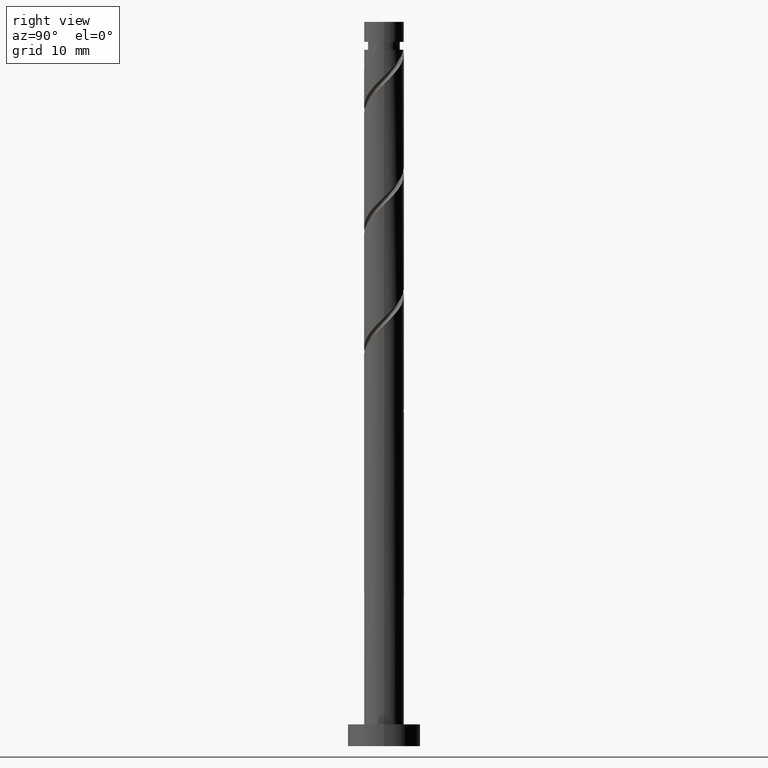
[diagram: clean part render]
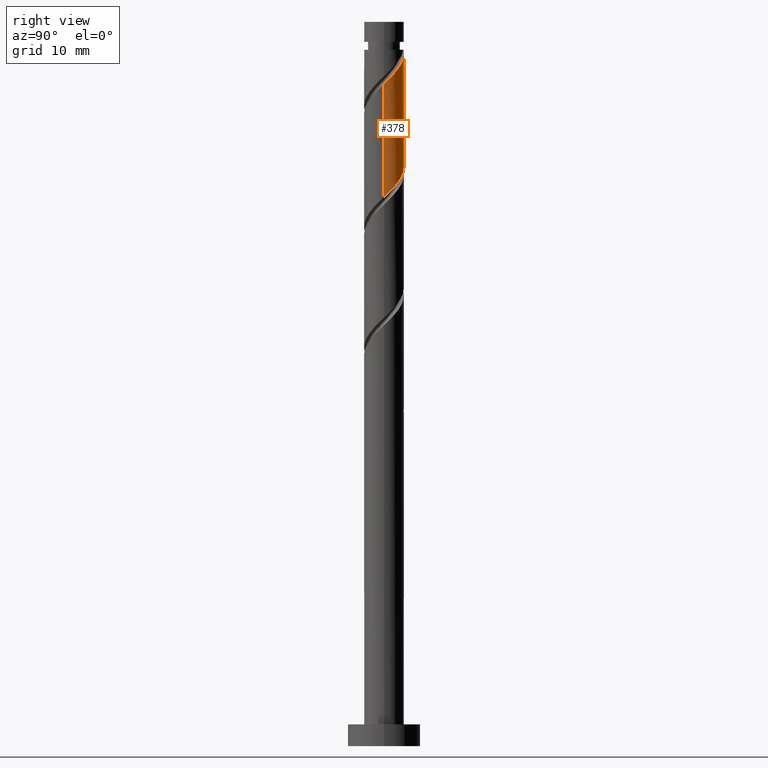
[diagram: same view with one face highlighted and labeled with its STEP entity id]
A machine part, right view. The second image highlights one B-rep face of the part: STEP entity #378.
In plain terms, the highlighted cylindrical surface (edge-blend (fillet) strip) has radius 2.75 mm, axis along (-0, -0, -1).
Its self-contained STEP definition (entity closure, byte-faithful):
#28 = CARTESIAN_POINT ( 'NONE',  ( -0.5472430904086412751, 2.695000000000002949, 96.14339405132615468 ) ) ;
#35 = FACE_OUTER_BOUND ( 'NONE', #1368, .T. ) ;
#66 = CARTESIAN_POINT ( 'NONE',  ( 2.151525136548020800, 1.712728696204399492, 77.62487553280762143 ) ) ;
#69 = CARTESIAN_POINT ( 'NONE',  ( -2.750000000000000000, 0.000000000000000000, 100.0000000000000000 ) ) ;
#73 = CARTESIAN_POINT ( 'NONE',  ( 1.022444303417954448, 2.598506278154673943, 79.01376442169650716 ) ) ;
#142 =( BOUNDED_CURVE ( )  B_SPLINE_CURVE ( 2, ( #1166, #828, #598, #1051, #388, #941, #1402, #843, #151, #1186, #406, #164, #28 ),
 .UNSPECIFIED., .F., .T. ) 
 B_SPLINE_CURVE_WITH_KNOTS ( ( 3, 2, 2, 2, 2, 2, 3 ),
 ( 0.6795248053855290626, 0.6805555555555555802, 0.6944444444444444198, 0.7083333333333332593, 0.7222222222222220989, 0.7361111111111110494, 0.7499999999999998890 ),
 .UNSPECIFIED. ) 
 CURVE ( )  GEOMETRIC_REPRESENTATION_ITEM ( )  RATIONAL_B_SPLINE_CURVE ( ( 0.9071930855141258077, 0.9080659294509735302, 0.9090909090909136125, 0.8952797754656481866, 0.9090909090909136125, 0.8952797754656481866, 0.9090909090909136125, 0.8952797754656481866, 0.9090909090909136125, 0.8952797754656481866, 0.9090909090909136125, 0.8952797754656482976, 0.9090909090909135015 ) ) 
 REPRESENTATION_ITEM ( '' )  );
#151 = CARTESIAN_POINT ( 'NONE',  ( 1.313100079662430142, 2.416250852206894173, 94.29154219947430704 ) ) ;
#158 = CYLINDRICAL_SURFACE ( 'NONE', #658, 2.750000000000000000 ) ;
#164 = CARTESIAN_POINT ( 'NONE',  ( -0.07204187739932399470, 2.791493721845327958, 95.68043108836320698 ) ) ;
#187 = EDGE_CURVE ( 'NONE', #321, #798, #1162, .T. ) ;
#188 = CARTESIAN_POINT ( 'NONE',  ( -0.4075039924296010585, 2.719639773233568647, 80.40265331058542131 ) ) ;
#217 = CARTESIAN_POINT ( 'NONE',  ( -0.5472430904086412751, 2.695000000000002949, 96.14339405132615468 ) ) ;
#250 = DIRECTION ( 'NONE',  ( -0.000000000000000000, -0.000000000000000000, -1.000000000000000000 ) ) ;
#268 = EDGE_CURVE ( 'NONE', #1053, #798, #1126, .T. ) ;
#277 = CARTESIAN_POINT ( 'NONE',  ( 0.000000000000000000, 0.000000000000000000, 100.0000000000000000 ) ) ;
#281 = AXIS2_PLACEMENT_3D ( 'NONE', #1476, #467, #576 ) ;
#318 = CARTESIAN_POINT ( 'NONE',  ( -1.313100079662427033, 2.416250852206890620, 81.32857923651134513 ) ) ;
#321 = VERTEX_POINT ( 'NONE', #919 ) ;
#360 = EDGE_CURVE ( 'NONE', #1053, #758, #142, .T. ) ;
#361 = VERTEX_POINT ( 'NONE', #1305 ) ;
#378 = ADVANCED_FACE ( 'NONE', ( #35 ), #158, .T. ) ;
#388 = CARTESIAN_POINT ( 'NONE',  ( 2.559029128977625245, 1.006911077029168267, 92.43969034762244519 ) ) ;
#406 = CARTESIAN_POINT ( 'NONE',  ( 0.4075039924296040561, 2.719639773233572200, 95.21746812540021665 ) ) ;
#414 = CARTESIAN_POINT ( 'NONE',  ( -2.750000000000000888, -1.139096199200652574E-15, 84.17424893964826538 ) ) ;
#421 = CARTESIAN_POINT ( 'NONE',  ( 2.750000000000000000, -2.352887231135773990E-16, 75.84091560631489415 ) ) ;
#429 = CARTESIAN_POINT ( 'NONE',  ( -2.736574719032081937, 0.5556851971715314198, 83.64339405132615468 ) ) ;
#443 = CARTESIAN_POINT ( 'NONE',  ( 1.435984580095755136, 2.345303452802475874, 78.55080145873357367 ) ) ;
#467 = DIRECTION ( 'NONE',  ( -0.000000000000000000, -0.000000000000000000, -1.000000000000000000 ) ) ;
#497 = DIRECTION ( 'NONE',  ( -0.000000000000000000, -0.000000000000000000, -1.000000000000000000 ) ) ;
#532 = CARTESIAN_POINT ( 'NONE',  ( 2.607560008403383645, 0.8735735816606123860, 76.69894960688169760 ) ) ;
#548 = CARTESIAN_POINT ( 'NONE',  ( 0.07204187739932838008, 2.791493721845324849, 79.93969034762244519 ) ) ;
#555 = CARTESIAN_POINT ( 'NONE',  ( -2.559029128977620360, 1.006911077029168045, 83.18043108836319277 ) ) ;
#576 = DIRECTION ( 'NONE',  ( -1.000000000000000000, 0.000000000000000000, 0.000000000000000000 ) ) ;
#598 = CARTESIAN_POINT ( 'NONE',  ( 2.749084659758183502, 0.07094739940441324721, 91.51376442169653558 ) ) ;
#614 = VECTOR ( 'NONE', #1199, 1000.000000000000000 ) ;
#623 = CARTESIAN_POINT ( 'NONE',  ( 2.750000000000003553, 1.938330909459457832E-15, 91.44587249633741521 ) ) ;
#645 = LINE ( 'NONE', #69, #614 ) ;
#658 = AXIS2_PLACEMENT_3D ( 'NONE', #277, #497, #836 ) ;
#671 = CARTESIAN_POINT ( 'NONE',  ( -2.749084659758179949, 0.07094739940441363579, 84.10635701428914501 ) ) ;
#743 = VECTOR ( 'NONE', #250, 1000.000000000000000 ) ;
#758 = VERTEX_POINT ( 'NONE', #217 ) ;
#763 = CARTESIAN_POINT ( 'NONE',  ( 1.849524856773553383, 2.092100627450279138, 78.08783849577058334 ) ) ;
#765 = ORIENTED_EDGE ( 'NONE', *, *, #187, .F. ) ;
#798 = VERTEX_POINT ( 'NONE', #1012 ) ;
#818 = EDGE_CURVE ( 'NONE', #361, #758, #1165, .T. ) ;
#828 = CARTESIAN_POINT ( 'NONE',  ( 2.750000000000003553, 0.03547960441305703094, 91.47988987026977270 ) ) ;
#831 = ORIENTED_EDGE ( 'NONE', *, *, #818, .T. ) ;
#836 = DIRECTION ( 'NONE',  ( -1.000000000000000000, 0.000000000000000000, 0.000000000000000000 ) ) ;
#843 = CARTESIAN_POINT ( 'NONE',  ( 1.739150297066326178, 2.184715879791973236, 93.82857923651134513 ) ) ;
#865 = CARTESIAN_POINT ( 'NONE',  ( -2.750000000000000444, 0.03547960441305771789, 84.14023156571590789 ) ) ;
#879 = CARTESIAN_POINT ( 'NONE',  ( -2.060316917994740482, 1.821426418339388231, 82.25450516243728316 ) ) ;
#919 = CARTESIAN_POINT ( 'NONE',  ( -2.750000000000000888, -1.139096199200652574E-15, 84.17424893964826538 ) ) ;
#941 = CARTESIAN_POINT ( 'NONE',  ( 2.381483538923164556, 1.458136956886805224, 92.90265331058542131 ) ) ;
#982 = CARTESIAN_POINT ( 'NONE',  ( 2.750000000000000888, 0.4483995225062498147, 76.27083511868055155 ) ) ;
#999 = CARTESIAN_POINT ( 'NONE',  ( 2.453525416322486663, 1.333356764958519625, 77.16191256984468794 ) ) ;
#1012 = CARTESIAN_POINT ( 'NONE',  ( 2.750000000000000000, -2.352887231135773990E-16, 75.84091560631489415 ) ) ;
#1051 = CARTESIAN_POINT ( 'NONE',  ( 2.736574719032086378, 0.5556851971715313088, 91.97672738465949749 ) ) ;
#1053 = VERTEX_POINT ( 'NONE', #623 ) ;
#1096 = CARTESIAN_POINT ( 'NONE',  ( 0.5472430904086421632, 2.694999999999999840, 79.47672738465951170 ) ) ;
#1126 = LINE ( 'NONE', #1395, #743 ) ;
#1153 = ORIENTED_EDGE ( 'NONE', *, *, #1258, .F. ) ;
#1162 =( BOUNDED_CURVE ( )  B_SPLINE_CURVE ( 2, ( #414, #865, #671, #429, #555, #1328, #879, #1342, #318, #1468, #188, #548, #1096, #73, #443, #763, #66, #999, #532, #982, #421 ),
 .UNSPECIFIED., .F., .T. ) 
 B_SPLINE_CURVE_WITH_KNOTS ( ( 3, 2, 2, 2, 2, 2, 2, 2, 2, 2, 3 ),
 ( 0.4295248053855290626, 0.4305555555555555802, 0.4444444444444444198, 0.4583333333333333148, 0.4722222222222222099, 0.4861111111111111049, 0.5000000000000000000, 0.5138888888888888395, 0.5277777777777777901, 0.5416666666666666297, 0.5545248053855291737 ),
 .UNSPECIFIED. ) 
 CURVE ( )  GEOMETRIC_REPRESENTATION_ITEM ( )  RATIONAL_B_SPLINE_CURVE ( ( 0.9071930855141197014, 0.9080659294509674240, 0.9090909090909076173, 0.8952797754656421914, 0.9090909090909076173, 0.8952797754656421914, 0.9090909090909076173, 0.8952797754656421914, 0.9090909090909076173, 0.8952797754656421914, 0.9090909090909076173, 0.8952797754656421914, 0.9090909090909076173, 0.8952797754656421914, 0.9090909090909076173, 0.8952797754656421914, 0.9090909090909076173, 0.8952797754656421914, 0.9090909090909076173, 0.8963047551055821627, 0.9071930855141200345 ) ) 
 REPRESENTATION_ITEM ( '' )  );
#1165 = CIRCLE ( 'NONE', #281, 2.750000000000000888 ) ;
#1166 = CARTESIAN_POINT ( 'NONE',  ( 2.750000000000003553, 1.938330909459457832E-15, 91.44587249633741521 ) ) ;
#1186 = CARTESIAN_POINT ( 'NONE',  ( 0.8870498622585334392, 2.647785824621815554, 94.75450516243725474 ) ) ;
#1199 = DIRECTION ( 'NONE',  ( -0.000000000000000000, -0.000000000000000000, -1.000000000000000000 ) ) ;
#1236 = ORIENTED_EDGE ( 'NONE', *, *, #268, .T. ) ;
#1258 = EDGE_CURVE ( 'NONE', #361, #321, #645, .T. ) ;
#1277 = ORIENTED_EDGE ( 'NONE', *, *, #360, .F. ) ;
#1305 = CARTESIAN_POINT ( 'NONE',  ( -2.750000000000000444, 0.000000000000000000, 96.14339405132615468 ) ) ;
#1328 = CARTESIAN_POINT ( 'NONE',  ( -2.381483538923158338, 1.458136956886805002, 82.71746812540023086 ) ) ;
#1342 = CARTESIAN_POINT ( 'NONE',  ( -1.739150297066323292, 2.184715879791970128, 81.79154219947429283 ) ) ;
#1368 = EDGE_LOOP ( 'NONE', ( #1277, #1236, #765, #1153, #831 ) ) ;
#1395 = CARTESIAN_POINT ( 'NONE',  ( 2.750000000000000000, 3.367778697655220519E-16, 100.0000000000000000 ) ) ;
#1402 = CARTESIAN_POINT ( 'NONE',  ( 2.060316917994744479, 1.821426418339390230, 93.36561627354839743 ) ) ;
#1468 = CARTESIAN_POINT ( 'NONE',  ( -0.8870498622585303305, 2.647785824621812001, 80.86561627354838322 ) ) ;
#1476 = CARTESIAN_POINT ( 'NONE',  ( 0.000000000000000000, 0.000000000000000000, 96.14339405132615468 ) ) ;